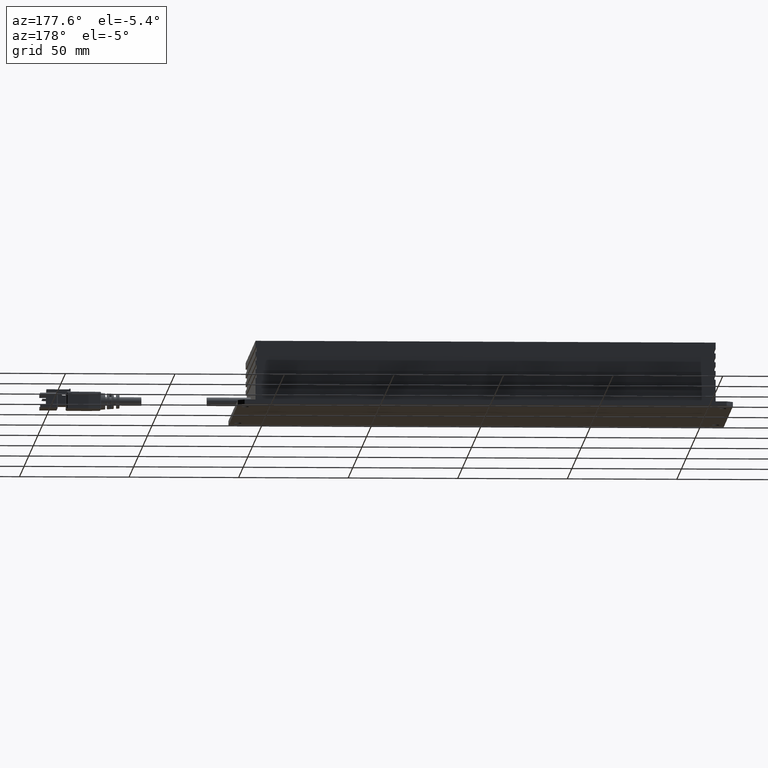
[diagram: clean part render]
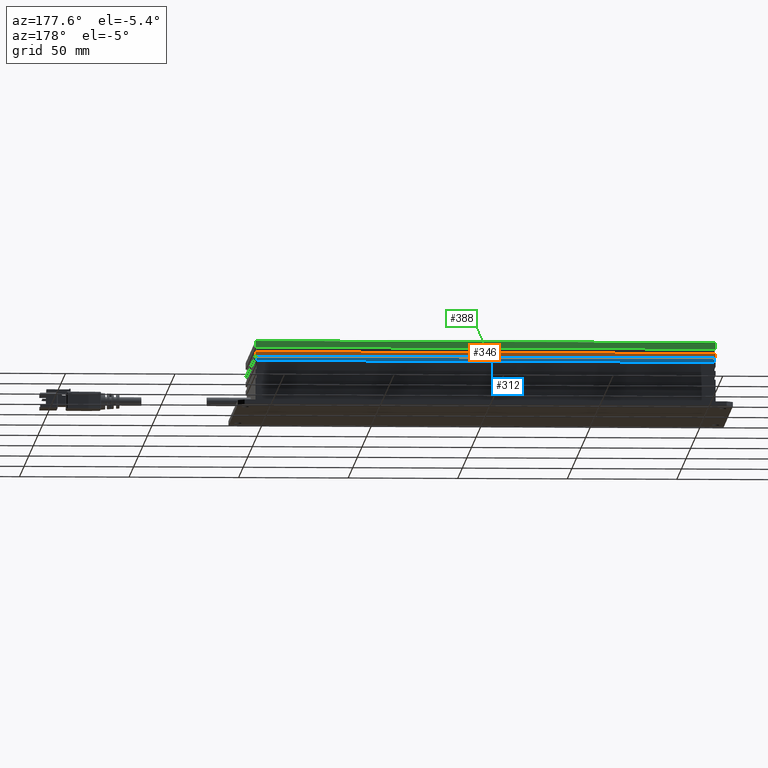
[diagram: same view with three faces highlighted in distinct colors, each labeled with its STEP entity id]
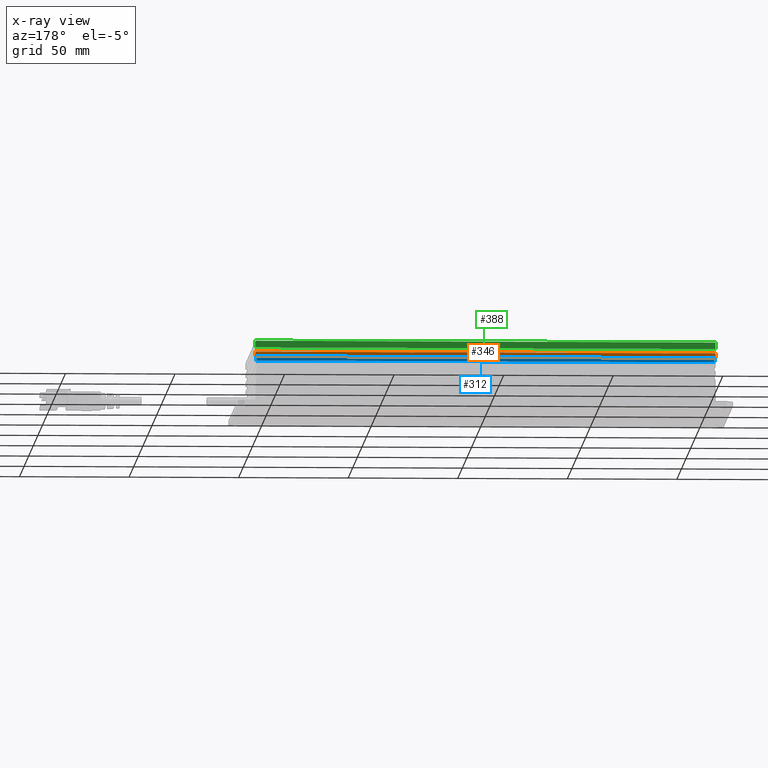
[diagram: x-ray of the same camera — body ghosted, the three highlighted faces saturated]
A machine part, auxiliary view with three faces highlighted in distinct colors.
The next image is the same camera in x-ray (body ghosted, the three faces saturated) — at least one of them is partly hidden behind the body in this view.
Their STEP definitions:

[orange] entity #346 — the highlighted planar face has unit normal (0, 1, -0).
#346=ADVANCED_FACE('0:300400',(#858),#859,.T.);
#858=FACE_OUTER_BOUND('',#1549,.T.);
#859=PLANE('',#1550);
#1549=EDGE_LOOP('',(#2760,#2761,#2762,#2763));
#1550=AXIS2_PLACEMENT_3D('',#2764,#2765,#2766);
#2760=ORIENTED_EDGE('',*,*,#4553,.T.);
#2761=ORIENTED_EDGE('',*,*,#4554,.F.);
#2762=ORIENTED_EDGE('',*,*,#4537,.F.);
#2763=ORIENTED_EDGE('',*,*,#4511,.F.);
#2764=CARTESIAN_POINT('',(0.113,0.0539999999999996,-2.02962646689286E-16));
#2765=DIRECTION('',(3.21964677141295E-15,1.0,-3.71352796603441E-15));
#2766=DIRECTION('',(-1.0,3.21964677141295E-15,0.0));
#4511=EDGE_CURVE('0:300655',#5320,#5321,#5322,.T.);
#4537=EDGE_CURVE('0:300871',#5321,#5360,#5361,.T.);
#4553=EDGE_CURVE('0:300838',#5320,#5387,#5388,.T.);
#4554=EDGE_CURVE('0:300868',#5360,#5387,#5389,.T.);
#5320=VERTEX_POINT('',#6481);
#5321=VERTEX_POINT('',#6482);
#5322=LINE('',#6483,#6484);
#5360=VERTEX_POINT('',#6540);
#5361=LINE('',#6541,#6542);
#5387=VERTEX_POINT('',#6578);
#5388=LINE('',#6579,#6580);
#5389=LINE('',#6581,#6582);
#6481=CARTESIAN_POINT('',(0.105,0.0539999999999997,0.0238999999999998));
#6482=CARTESIAN_POINT('',(-0.105,0.0540000000000004,0.0238999999999998));
#6483=CARTESIAN_POINT('',(0.105,0.0539999999999997,0.0238999999999998));
#6484=VECTOR('',#8005,1.0);
#6540=CARTESIAN_POINT('',(-0.105,0.0540000000000004,0.0218999999999998));
#6541=CARTESIAN_POINT('',(-0.105,0.0540000000000004,0.0238999999999998));
#6542=VECTOR('',#8024,1.0);
#6578=CARTESIAN_POINT('',(0.105,0.0539999999999997,0.0218999999999998));
#6579=CARTESIAN_POINT('',(0.105,0.0539999999999997,0.0238999999999998));
#6580=VECTOR('',#8041,1.0);
#6581=CARTESIAN_POINT('',(-0.105,0.0540000000000004,0.0218999999999998));
#6582=VECTOR('',#8042,1.0);
#8005=DIRECTION('',(-1.0,3.21964677141295E-15,0.0));
#8024=DIRECTION('',(-1.20301288046204E-29,-3.71352796603441E-15,-1.0));
#8041=DIRECTION('',(-1.20301288046204E-29,-3.71352796603441E-15,-1.0));
#8042=DIRECTION('',(1.0,-3.21964677141295E-15,0.0));

[blue] entity #312 — the highlighted planar face has unit normal (0, 1, -0).
#312=ADVANCED_FACE('0:300439',(#799),#800,.T.);
#799=FACE_OUTER_BOUND('',#1490,.T.);
#800=PLANE('',#1491);
#1490=EDGE_LOOP('',(#2601,#2602,#2603,#2604));
#1491=AXIS2_PLACEMENT_3D('',#2605,#2606,#2607);
#2601=ORIENTED_EDGE('',*,*,#4479,.T.);
#2602=ORIENTED_EDGE('',*,*,#4426,.T.);
#2603=ORIENTED_EDGE('',*,*,#4480,.T.);
#2604=ORIENTED_EDGE('',*,*,#4481,.F.);
#2605=CARTESIAN_POINT('',(2.15105711021124E-16,0.0535,-2.0122792321331E-16));
#2606=DIRECTION('',(3.21964677141295E-15,1.0,-3.71352796603441E-15));
#2607=DIRECTION('',(-1.0,3.21964677141295E-15,0.0));
#4426=EDGE_CURVE('0:300790',#5173,#5178,#5180,.T.);
#4479=EDGE_CURVE('0:300787',#5273,#5173,#5274,.T.);
#4480=EDGE_CURVE('0:300793',#5178,#5275,#5276,.T.);
#4481=EDGE_CURVE('0:300727',#5273,#5275,#5277,.T.);
#5173=VERTEX_POINT('',#6272);
#5178=VERTEX_POINT('',#6279);
#5180=LINE('',#6282,#6283);
#5273=VERTEX_POINT('',#6409);
#5274=LINE('',#6410,#6411);
#5275=VERTEX_POINT('',#6412);
#5276=LINE('',#6413,#6414);
#5277=LINE('',#6415,#6416);
#6272=CARTESIAN_POINT('',(-0.1045,0.0535000000000004,0.0198999999999998));
#6279=CARTESIAN_POINT('',(-0.1045,0.0535000000000004,0.0218999999999998));
#6282=CARTESIAN_POINT('',(-0.1045,0.0535000000000004,0.0198999999999998));
#6283=VECTOR('',#7922,1.0);
#6409=CARTESIAN_POINT('',(0.1045,0.0534999999999997,0.0198999999999998));
#6410=CARTESIAN_POINT('',(0.1045,0.0534999999999997,0.0198999999999998));
#6411=VECTOR('',#7980,1.0);
#6412=CARTESIAN_POINT('',(0.1045,0.0534999999999997,0.0218999999999998));
#6413=CARTESIAN_POINT('',(-0.1045,0.0535000000000004,0.0218999999999998));
#6414=VECTOR('',#7981,1.0);
#6415=CARTESIAN_POINT('',(0.1045,0.0534999999999997,0.0198999999999998));
#6416=VECTOR('',#7982,1.0);
#7922=DIRECTION('',(1.20301288046204E-29,3.71352796603441E-15,1.0));
#7980=DIRECTION('',(-1.0,3.21964677141295E-15,0.0));
#7981=DIRECTION('',(1.0,-3.21964677141295E-15,0.0));
#7982=DIRECTION('',(1.20301288046204E-29,3.71352796603441E-15,1.0));

[green] entity #388 — the highlighted planar face has unit normal (0, 1, -0).
#388=ADVANCED_FACE('0:300397',(#924),#925,.T.);
#924=FACE_OUTER_BOUND('',#1615,.T.);
#925=PLANE('',#1616);
#1615=EDGE_LOOP('',(#2932,#2933,#2934,#2935));
#1616=AXIS2_PLACEMENT_3D('',#2936,#2937,#2938);
#2932=ORIENTED_EDGE('',*,*,#4606,.F.);
#2933=ORIENTED_EDGE('',*,*,#4601,.F.);
#2934=ORIENTED_EDGE('',*,*,#4607,.T.);
#2935=ORIENTED_EDGE('',*,*,#4550,.F.);
#2936=CARTESIAN_POINT('',(0.113,0.0539999999999996,-2.02962646689286E-16));
#2937=DIRECTION('',(3.21964677141295E-15,1.0,-3.71352796603441E-15));
#2938=DIRECTION('',(-1.0,3.21964677141295E-15,0.0));
#4550=EDGE_CURVE('0:300757',#5381,#5383,#5384,.T.);
#4601=EDGE_CURVE('0:300877',#5444,#5445,#5446,.T.);
#4606=EDGE_CURVE('0:300874',#5445,#5381,#5453,.T.);
#4607=EDGE_CURVE('0:300841',#5444,#5383,#5454,.T.);
#5381=VERTEX_POINT('',#6569);
#5383=VERTEX_POINT('',#6572);
#5384=LINE('',#6573,#6574);
#5444=VERTEX_POINT('',#6663);
#5445=VERTEX_POINT('',#6664);
#5446=LINE('',#6665,#6666);
#5453=LINE('',#6676,#6677);
#5454=LINE('',#6678,#6679);
#6569=CARTESIAN_POINT('',(-0.105,0.0540000000000004,0.0258999999999998));
#6572=CARTESIAN_POINT('',(0.105,0.0539999999999997,0.0258999999999998));
#6573=CARTESIAN_POINT('',(-0.105,0.0540000000000004,0.0258999999999998));
#6574=VECTOR('',#8039,1.0);
#6663=CARTESIAN_POINT('',(0.105,0.0539999999999997,0.0288999999999998));
#6664=CARTESIAN_POINT('',(-0.105,0.0540000000000004,0.0288999999999998));
#6665=CARTESIAN_POINT('',(0.105,0.0539999999999997,0.0288999999999998));
#6666=VECTOR('',#8069,1.0);
#6676=CARTESIAN_POINT('',(-0.105,0.0540000000000004,0.0288999999999998));
#6677=VECTOR('',#8073,1.0);
#6678=CARTESIAN_POINT('',(0.105,0.0539999999999997,0.0288999999999998));
#6679=VECTOR('',#8074,1.0);
#8039=DIRECTION('',(1.0,-3.21964677141295E-15,0.0));
#8069=DIRECTION('',(-1.0,3.21964677141295E-15,0.0));
#8073=DIRECTION('',(-1.20301288046204E-29,-3.71352796603441E-15,-1.0));
#8074=DIRECTION('',(-1.20301288046204E-29,-3.71352796603441E-15,-1.0));